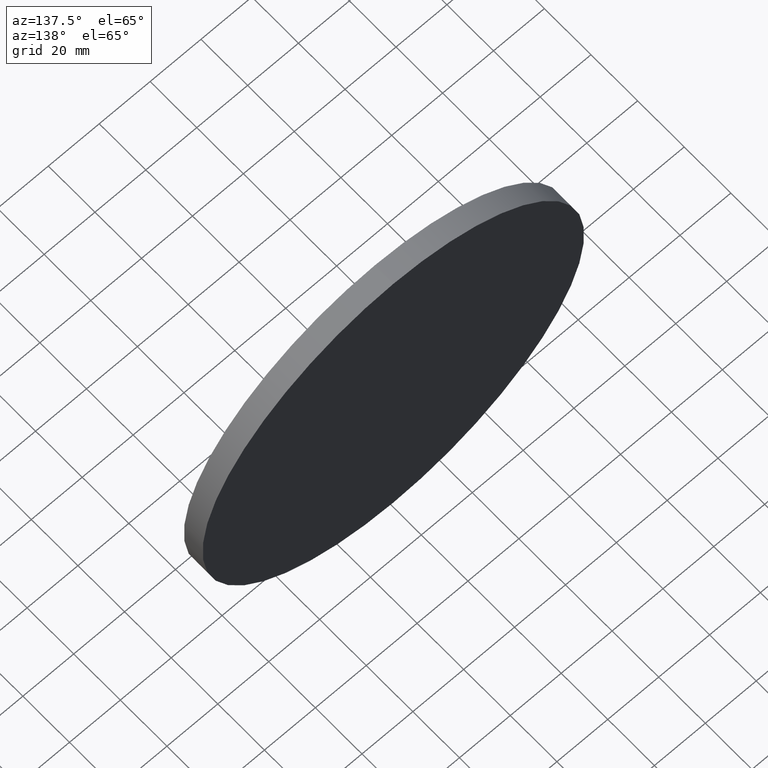
[diagram: clean part render]
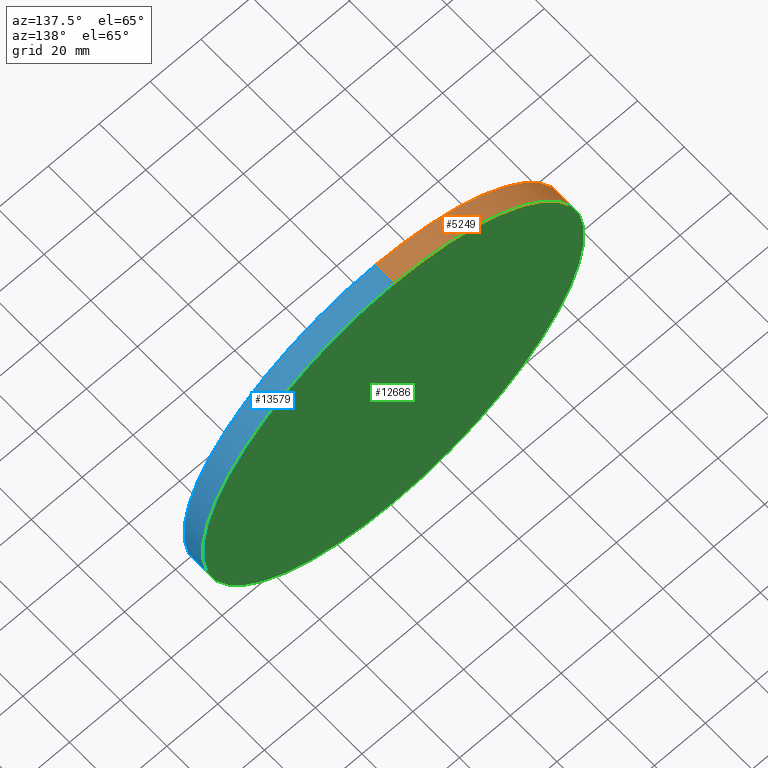
[diagram: same view with three faces highlighted in distinct colors, each labeled with its STEP entity id]
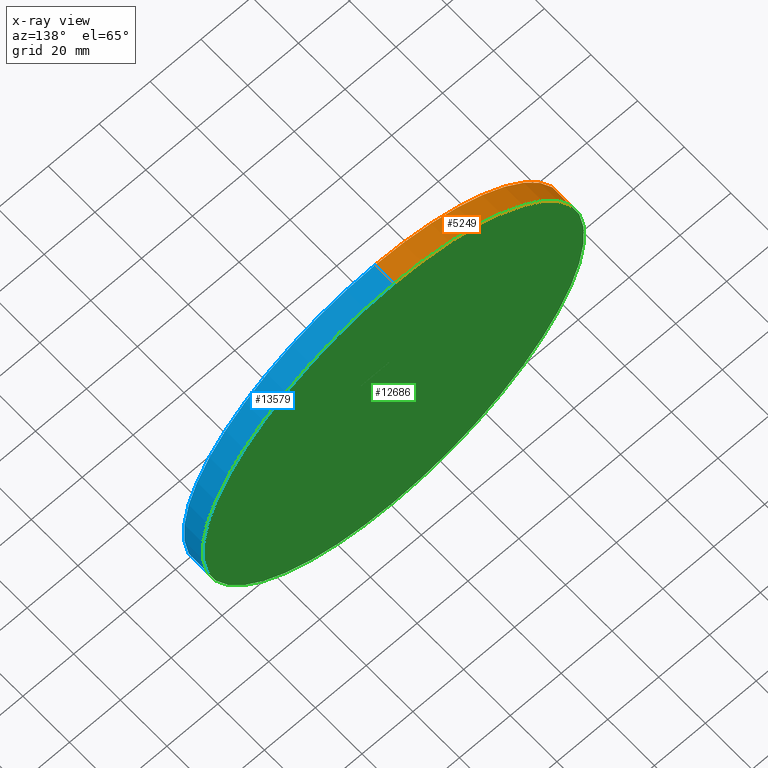
[diagram: x-ray of the same camera — body ghosted, the three highlighted faces saturated]
A machine part, auxiliary view with three faces highlighted in distinct colors.
The next image is the same camera in x-ray (body ghosted, the three faces saturated) — at least one of them is partly hidden behind the body in this view.
Their STEP definitions:

[orange] entity #5249 — the highlighted cylindrical surface (partial cylindrical patch) has radius 75 mm, axis along (-0, -1, -0).
#430 = EDGE_CURVE ( 'NONE', #7561, #5505, #13176, .T. ) ;
#1166 = CARTESIAN_POINT ( 'NONE',  ( 9.184850993605150300E-015, 0.0000000000000000000, 75.00000000000001400 ) ) ;
#1582 = EDGE_CURVE ( 'NONE', #5505, #6216, #5447, .T. ) ;
#1778 = ORIENTED_EDGE ( 'NONE', *, *, #1582, .F. ) ;
#1818 = DIRECTION ( 'NONE',  ( -0.0000000000000000000, -1.000000000000000000, -0.0000000000000000000 ) ) ;
#1941 = VERTEX_POINT ( 'NONE', #4886 ) ;
#2557 = AXIS2_PLACEMENT_3D ( 'NONE', #12545, #7107, #7158 ) ;
#2962 = EDGE_CURVE ( 'NONE', #1941, #6216, #4607, .T. ) ;
#3860 = ORIENTED_EDGE ( 'NONE', *, *, #2962, .T. ) ;
#4286 = ORIENTED_EDGE ( 'NONE', *, *, #8983, .T. ) ;
#4443 = DIRECTION ( 'NONE',  ( 0.0000000000000000000, 0.0000000000000000000, -1.000000000000000000 ) ) ;
#4607 = CIRCLE ( 'NONE', #9047, 75.00000000000001400 ) ;
#4886 = CARTESIAN_POINT ( 'NONE',  ( 0.0000000000000000000, 0.0000000000000000000, -75.00000000000001400 ) ) ;
#5249 = ADVANCED_FACE ( 'NONE', ( #8182 ), #9503, .T. ) ;
#5382 = DIRECTION ( 'NONE',  ( -0.0000000000000000000, -1.000000000000000000, -0.0000000000000000000 ) ) ;
#5447 = LINE ( 'NONE', #10700, #12843 ) ;
#5505 = VERTEX_POINT ( 'NONE', #6309 ) ;
#6014 = ORIENTED_EDGE ( 'NONE', *, *, #430, .F. ) ;
#6216 = VERTEX_POINT ( 'NONE', #1166 ) ;
#6309 = CARTESIAN_POINT ( 'NONE',  ( 9.184850993605150300E-015, 8.000000000000000000, 75.00000000000001400 ) ) ;
#6625 = DIRECTION ( 'NONE',  ( -0.0000000000000000000, -1.000000000000000000, -0.0000000000000000000 ) ) ;
#7107 = DIRECTION ( 'NONE',  ( 0.0000000000000000000, 1.000000000000000000, 0.0000000000000000000 ) ) ;
#7158 = DIRECTION ( 'NONE',  ( 0.0000000000000000000, 0.0000000000000000000, 1.000000000000000000 ) ) ;
#7159 = VECTOR ( 'NONE', #5382, 1000.000000000000000 ) ;
#7384 = CARTESIAN_POINT ( 'NONE',  ( 0.0000000000000000000, 8.000000000000000000, -75.00000000000001400 ) ) ;
#7561 = VERTEX_POINT ( 'NONE', #7384 ) ;
#8182 = FACE_OUTER_BOUND ( 'NONE', #9285, .T. ) ;
#8983 = EDGE_CURVE ( 'NONE', #7561, #1941, #11100, .T. ) ;
#9047 = AXIS2_PLACEMENT_3D ( 'NONE', #10507, #11662, #9438 ) ;
#9285 = EDGE_LOOP ( 'NONE', ( #1778, #6014, #4286, #3860 ) ) ;
#9438 = DIRECTION ( 'NONE',  ( 0.0000000000000000000, 0.0000000000000000000, 1.000000000000000000 ) ) ;
#9503 = CYLINDRICAL_SURFACE ( 'NONE', #11559, 75.00000000000001400 ) ;
#9649 = CARTESIAN_POINT ( 'NONE',  ( 0.0000000000000000000, 8.000000000000000000, -75.00000000000001400 ) ) ;
#10507 = CARTESIAN_POINT ( 'NONE',  ( 0.0000000000000000000, 0.0000000000000000000, 0.0000000000000000000 ) ) ;
#10599 = CARTESIAN_POINT ( 'NONE',  ( 0.0000000000000000000, 8.000000000000000000, 0.0000000000000000000 ) ) ;
#10700 = CARTESIAN_POINT ( 'NONE',  ( 9.184850993605150300E-015, 8.000000000000000000, 75.00000000000001400 ) ) ;
#11100 = LINE ( 'NONE', #9649, #7159 ) ;
#11559 = AXIS2_PLACEMENT_3D ( 'NONE', #10599, #1818, #4443 ) ;
#11662 = DIRECTION ( 'NONE',  ( 0.0000000000000000000, 1.000000000000000000, 0.0000000000000000000 ) ) ;
#12545 = CARTESIAN_POINT ( 'NONE',  ( 0.0000000000000000000, 8.000000000000000000, 0.0000000000000000000 ) ) ;
#12843 = VECTOR ( 'NONE', #6625, 1000.000000000000000 ) ;
#13176 = CIRCLE ( 'NONE', #2557, 75.00000000000001400 ) ;

[blue] entity #13579 — the highlighted cylindrical surface (partial cylindrical patch) has radius 75 mm, axis along (-0, -1, -0).
#783 = CARTESIAN_POINT ( 'NONE',  ( 0.0000000000000000000, 0.0000000000000000000, 0.0000000000000000000 ) ) ;
#853 = EDGE_LOOP ( 'NONE', ( #3362, #10951, #13342, #3118 ) ) ;
#1166 = CARTESIAN_POINT ( 'NONE',  ( 9.184850993605150300E-015, 0.0000000000000000000, 75.00000000000001400 ) ) ;
#1306 = AXIS2_PLACEMENT_3D ( 'NONE', #11727, #2443, #4500 ) ;
#1358 = CYLINDRICAL_SURFACE ( 'NONE', #1306, 75.00000000000001400 ) ;
#1582 = EDGE_CURVE ( 'NONE', #5505, #6216, #5447, .T. ) ;
#1941 = VERTEX_POINT ( 'NONE', #4886 ) ;
#2370 = CIRCLE ( 'NONE', #5523, 75.00000000000001400 ) ;
#2443 = DIRECTION ( 'NONE',  ( -0.0000000000000000000, -1.000000000000000000, -0.0000000000000000000 ) ) ;
#3118 = ORIENTED_EDGE ( 'NONE', *, *, #8983, .F. ) ;
#3362 = ORIENTED_EDGE ( 'NONE', *, *, #7007, .F. ) ;
#3625 = CARTESIAN_POINT ( 'NONE',  ( 0.0000000000000000000, 8.000000000000000000, 0.0000000000000000000 ) ) ;
#3885 = AXIS2_PLACEMENT_3D ( 'NONE', #3625, #12041, #13131 ) ;
#4500 = DIRECTION ( 'NONE',  ( 0.0000000000000000000, 0.0000000000000000000, -1.000000000000000000 ) ) ;
#4886 = CARTESIAN_POINT ( 'NONE',  ( 0.0000000000000000000, 0.0000000000000000000, -75.00000000000001400 ) ) ;
#4957 = FACE_OUTER_BOUND ( 'NONE', #853, .T. ) ;
#5382 = DIRECTION ( 'NONE',  ( -0.0000000000000000000, -1.000000000000000000, -0.0000000000000000000 ) ) ;
#5447 = LINE ( 'NONE', #10700, #12843 ) ;
#5505 = VERTEX_POINT ( 'NONE', #6309 ) ;
#5523 = AXIS2_PLACEMENT_3D ( 'NONE', #783, #10395, #9227 ) ;
#6216 = VERTEX_POINT ( 'NONE', #1166 ) ;
#6309 = CARTESIAN_POINT ( 'NONE',  ( 9.184850993605150300E-015, 8.000000000000000000, 75.00000000000001400 ) ) ;
#6625 = DIRECTION ( 'NONE',  ( -0.0000000000000000000, -1.000000000000000000, -0.0000000000000000000 ) ) ;
#7007 = EDGE_CURVE ( 'NONE', #5505, #7561, #11130, .T. ) ;
#7159 = VECTOR ( 'NONE', #5382, 1000.000000000000000 ) ;
#7384 = CARTESIAN_POINT ( 'NONE',  ( 0.0000000000000000000, 8.000000000000000000, -75.00000000000001400 ) ) ;
#7561 = VERTEX_POINT ( 'NONE', #7384 ) ;
#8983 = EDGE_CURVE ( 'NONE', #7561, #1941, #11100, .T. ) ;
#9227 = DIRECTION ( 'NONE',  ( 0.0000000000000000000, 0.0000000000000000000, 1.000000000000000000 ) ) ;
#9649 = CARTESIAN_POINT ( 'NONE',  ( 0.0000000000000000000, 8.000000000000000000, -75.00000000000001400 ) ) ;
#10395 = DIRECTION ( 'NONE',  ( 0.0000000000000000000, 1.000000000000000000, 0.0000000000000000000 ) ) ;
#10700 = CARTESIAN_POINT ( 'NONE',  ( 9.184850993605150300E-015, 8.000000000000000000, 75.00000000000001400 ) ) ;
#10951 = ORIENTED_EDGE ( 'NONE', *, *, #1582, .T. ) ;
#11100 = LINE ( 'NONE', #9649, #7159 ) ;
#11130 = CIRCLE ( 'NONE', #3885, 75.00000000000001400 ) ;
#11727 = CARTESIAN_POINT ( 'NONE',  ( 0.0000000000000000000, 8.000000000000000000, 0.0000000000000000000 ) ) ;
#12041 = DIRECTION ( 'NONE',  ( 0.0000000000000000000, 1.000000000000000000, 0.0000000000000000000 ) ) ;
#12430 = EDGE_CURVE ( 'NONE', #6216, #1941, #2370, .T. ) ;
#12843 = VECTOR ( 'NONE', #6625, 1000.000000000000000 ) ;
#13131 = DIRECTION ( 'NONE',  ( 0.0000000000000000000, 0.0000000000000000000, 1.000000000000000000 ) ) ;
#13342 = ORIENTED_EDGE ( 'NONE', *, *, #12430, .T. ) ;
#13579 = ADVANCED_FACE ( 'NONE', ( #4957 ), #1358, .T. ) ;

[green] entity #12686 — the highlighted planar face has unit normal (0, 1, 0).
#430 = EDGE_CURVE ( 'NONE', #7561, #5505, #13176, .T. ) ;
#1785 = PLANE ( 'NONE',  #7443 ) ;
#2557 = AXIS2_PLACEMENT_3D ( 'NONE', #12545, #7107, #7158 ) ;
#3511 = FACE_OUTER_BOUND ( 'NONE', #5822, .T. ) ;
#3625 = CARTESIAN_POINT ( 'NONE',  ( 0.0000000000000000000, 8.000000000000000000, 0.0000000000000000000 ) ) ;
#3753 = DIRECTION ( 'NONE',  ( 0.0000000000000000000, -0.0000000000000000000, 1.000000000000000000 ) ) ;
#3885 = AXIS2_PLACEMENT_3D ( 'NONE', #3625, #12041, #13131 ) ;
#4990 = CARTESIAN_POINT ( 'NONE',  ( 0.0000000000000000000, 8.000000000000000000, 0.0000000000000000000 ) ) ;
#5505 = VERTEX_POINT ( 'NONE', #6309 ) ;
#5822 = EDGE_LOOP ( 'NONE', ( #12085, #11787 ) ) ;
#6309 = CARTESIAN_POINT ( 'NONE',  ( 9.184850993605150300E-015, 8.000000000000000000, 75.00000000000001400 ) ) ;
#7007 = EDGE_CURVE ( 'NONE', #5505, #7561, #11130, .T. ) ;
#7054 = DIRECTION ( 'NONE',  ( 0.0000000000000000000, 1.000000000000000000, 0.0000000000000000000 ) ) ;
#7107 = DIRECTION ( 'NONE',  ( 0.0000000000000000000, 1.000000000000000000, 0.0000000000000000000 ) ) ;
#7158 = DIRECTION ( 'NONE',  ( 0.0000000000000000000, 0.0000000000000000000, 1.000000000000000000 ) ) ;
#7384 = CARTESIAN_POINT ( 'NONE',  ( 0.0000000000000000000, 8.000000000000000000, -75.00000000000001400 ) ) ;
#7443 = AXIS2_PLACEMENT_3D ( 'NONE', #4990, #7054, #3753 ) ;
#7561 = VERTEX_POINT ( 'NONE', #7384 ) ;
#11130 = CIRCLE ( 'NONE', #3885, 75.00000000000001400 ) ;
#11787 = ORIENTED_EDGE ( 'NONE', *, *, #7007, .T. ) ;
#12041 = DIRECTION ( 'NONE',  ( 0.0000000000000000000, 1.000000000000000000, 0.0000000000000000000 ) ) ;
#12085 = ORIENTED_EDGE ( 'NONE', *, *, #430, .T. ) ;
#12545 = CARTESIAN_POINT ( 'NONE',  ( 0.0000000000000000000, 8.000000000000000000, 0.0000000000000000000 ) ) ;
#12686 = ADVANCED_FACE ( 'NONE', ( #3511 ), #1785, .T. ) ;
#13131 = DIRECTION ( 'NONE',  ( 0.0000000000000000000, 0.0000000000000000000, 1.000000000000000000 ) ) ;
#13176 = CIRCLE ( 'NONE', #2557, 75.00000000000001400 ) ;